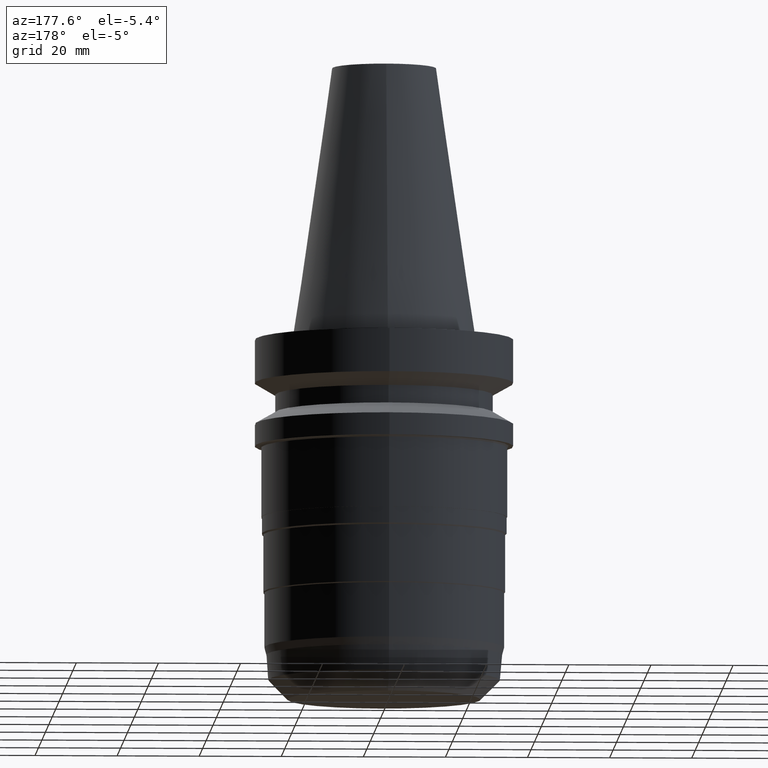
[diagram: clean part render]
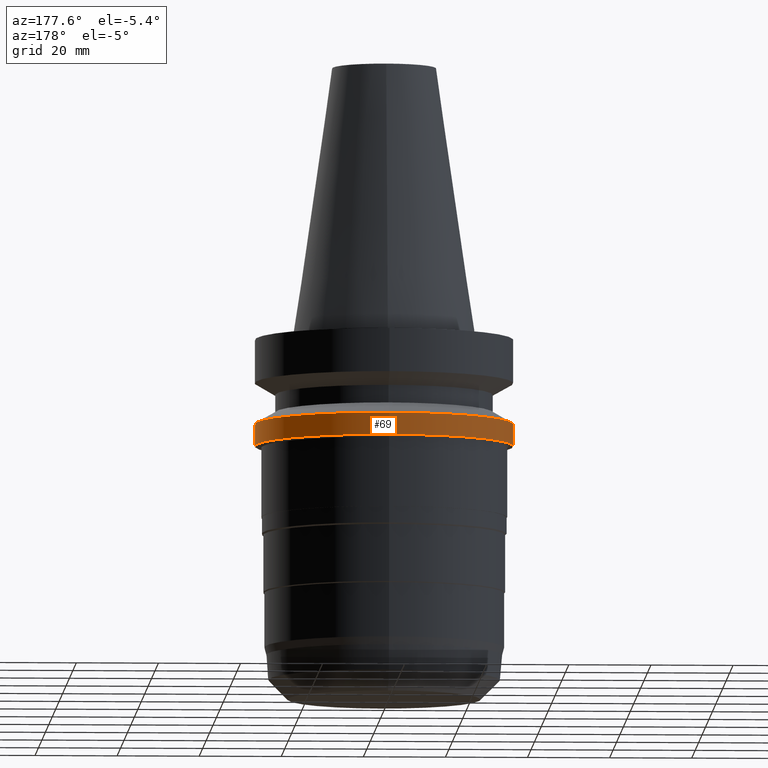
[diagram: same view with one face highlighted and labeled with its STEP entity id]
A machine part, auxiliary view. The second image highlights one B-rep face of the part: STEP entity #69.
In plain terms, the highlighted cylindrical surface (bore or boss wall) has radius 31.5 mm, axis along (0, 0, -1).
Its self-contained STEP definition (entity closure, byte-faithful):
#69=ADVANCED_FACE('Unnamed[1]',(#196,#197),#198,.T.);
#79=EDGE_CURVE('Unnamed[1]',#213,#213,#214,.T.);
#163=EDGE_CURVE('Unnamed[1]',#343,#343,#344,.T.);
#196=FACE_BOUND('',#377,.T.);
#197=FACE_BOUND('',#378,.T.);
#198=CYLINDRICAL_SURFACE('',#379,31.5000000000005);
#213=VERTEX_POINT('',#398);
#214=CIRCLE('',#399,31.5000000000007);
#343=VERTEX_POINT('',#561);
#344=CIRCLE('',#562,31.5000000000004);
#377=EDGE_LOOP('',(#593));
#378=EDGE_LOOP('',(#594));
#379=AXIS2_PLACEMENT_3D('',#595,#596,#597);
#398=CARTESIAN_POINT('',(1.32473071268174E-015,31.5000000000007,-21.6344943473346));
#399=AXIS2_PLACEMENT_3D('',#613,#614,#615);
#561=CARTESIAN_POINT('',(1.65327317884891E-015,31.5000000000004,-26.9999999999998));
#562=AXIS2_PLACEMENT_3D('',#756,#757,#758);
#593=ORIENTED_EDGE('',*,*,#163,.F.);
#594=ORIENTED_EDGE('',*,*,#79,.T.);
#595=CARTESIAN_POINT('',(1.48900194576533E-015,2.97800389153066E-015,-24.3172471736672));
#596=DIRECTION('',(6.12323399573677E-017,1.22464679914768E-016,-1.0));
#597=DIRECTION('',(-1.23259516440781E-032,1.0,1.22464679914768E-016));
#613=CARTESIAN_POINT('',(1.32473071268174E-015,2.64946142536349E-015,-21.6344943473346));
#614=DIRECTION('',(6.12323399573677E-017,1.22464679914767E-016,-1.0));
#615=DIRECTION('',(-1.2325951644078E-032,1.0,1.22464679914767E-016));
#756=CARTESIAN_POINT('',(1.65327317884891E-015,3.30654635769783E-015,-26.9999999999998));
#757=DIRECTION('',(6.12323399573677E-017,1.22464679914769E-016,-1.0));
#758=DIRECTION('',(-1.23259516440782E-032,1.0,1.22464679914769E-016));